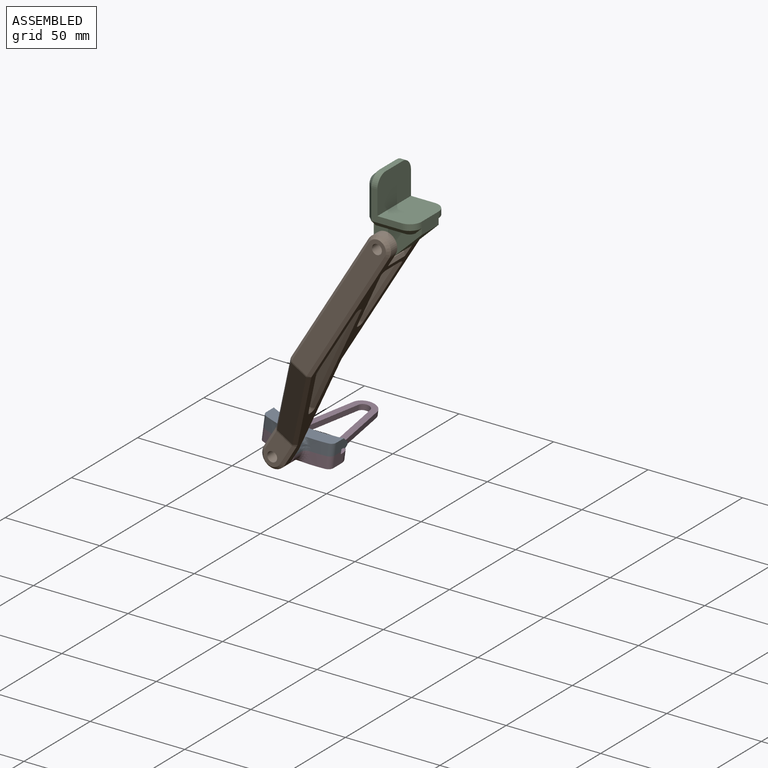
[diagram: assembled view]
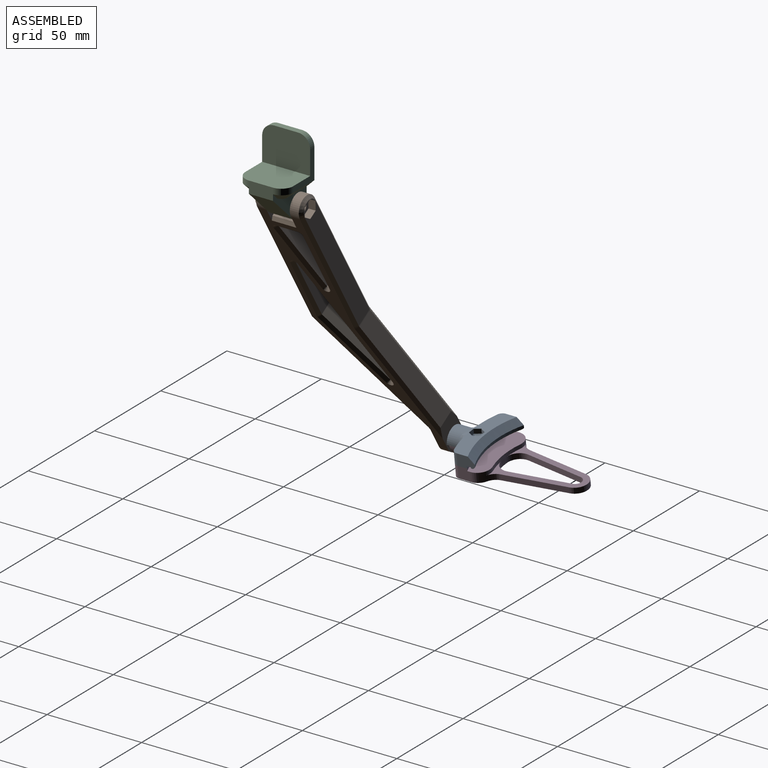
[diagram: assembled view, second angle]
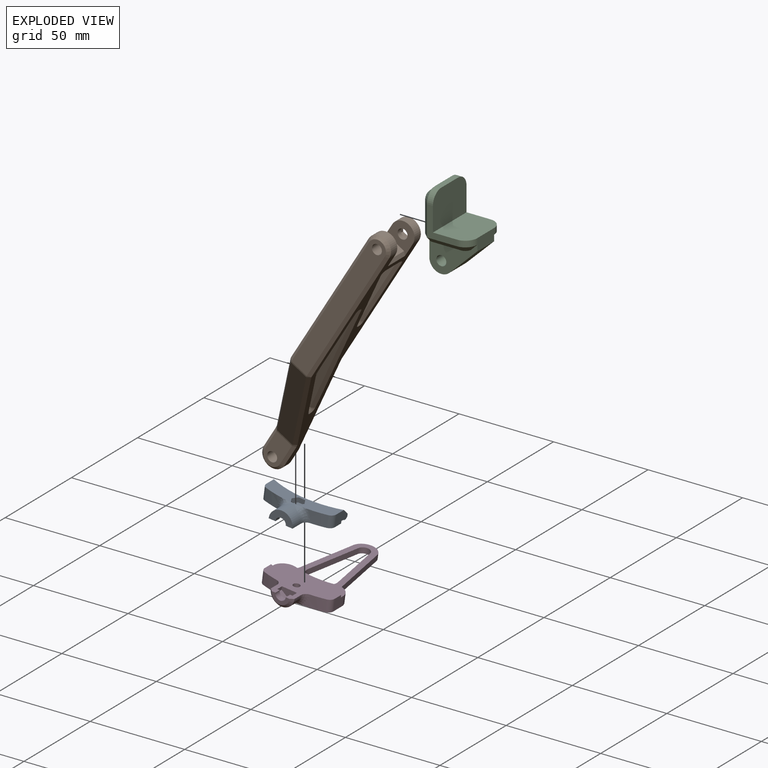
[diagram: exploded view]
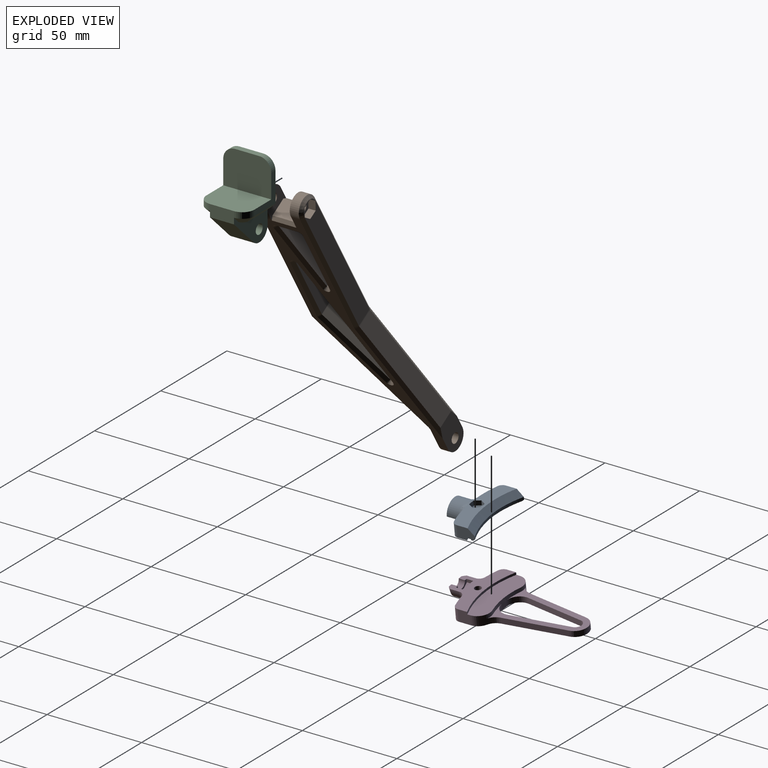
[diagram: exploded view, second angle]
ASSEMBLY  parts=4 mates=3
PART A: 43 faces, bbox 23.7x40.1x9.4 mm
  f0: plane 37.35x11.28mm, normal (0,0,1), area 252.1mm2, adj f3,f5,f6,f7,f14,f15,f16,f25
  f1: cylinder r=1.75mm len=3.5mm, axis (0,0,1), area 31.3mm2, adj f4,f32
  f2: plane 12.7x6.35mm, normal (1,0,0), area 51.5mm2, adj f4,f17,f24
  f3: plane 9.25x6.4mm, normal (0,-1,0), area 47.9mm2, adj f0,f4,f8,f9,f10,f11,f12,f13
  f4: plane 37.42x19.35mm, normal (0,0,-1), area 312.6mm2, adj f1,f2,f3,f5,f6,f7,f10,f15
  f5: cylinder r=54.6mm len=9.75mm, axis (0,0,-1), area 53.4mm2, adj f0,f4,f15,f40
  f6: cylinder r=54.6mm len=9.75mm, axis (0,0,-1), area 53.4mm2, adj f0,f4,f16,f41
  f7: plane 9.25x6.4mm, normal (0,1,0), area 47.9mm2, adj f0,f4,f8,f9,f10,f11,f12,f13
  f8: cylinder r=44mm len=37.35mm, axis (0,0,-1), area 55mm2, adj f3,f7,f13,f14
  f9: cylinder r=46mm len=37.35mm, axis (0,0,-1), area 19.2mm2, adj f3,f7,f11,f12
  f10: cylinder r=48mm len=37.35mm, axis (0,0,-1), area 48mm2, adj f3,f4,f7,f11
  f11: plane 37.35x5.96mm, normal (0,0,-1), area 76.8mm2, adj f3,f7,f9,f10
  f12: plane 37.35x5.06mm, normal (0,0,-1), area 38.5mm2, adj f3,f7,f9,f13
  f13: cone r=45mm half-angle=45deg, axis (0,0,-1), area 54.5mm2, adj f3,f7,f8,f12
  f14: cone r=44mm half-angle=45deg, axis (0,0,1), area 173mm2, adj f0,f3,f7,f8
  f15: cylinder r=3.17mm len=6.35mm, axis (0,0,-1), area 25.5mm2, adj f0,f3,f4,f5
  f16: cylinder r=3.17mm len=6.35mm, axis (0,0,-1), area 25.5mm2, adj f0,f4,f6,f7
  f17: cylinder r=6.35mm len=12.7mm, axis (-1,0,0), area 134.5mm2, adj f2,f4,f39,f40,f41,f42
  f18: plane 8x4.5mm, normal (-1,0,0), area 12.9mm2, adj f4,f19,f21,f22,f23,f24
  f19: plane 3.5x1.7mm, normal (0,-1,0), area 5.9mm2, adj f4,f18,f20,f23
  f20: plane 8x4.5mm, normal (1,0,0), area 24.8mm2, adj f4,f19,f21,f22,f23
  f21: plane 3.5x1.7mm, normal (0,1,0), area 5.9mm2, adj f4,f18,f20,f22
  f22: plane 4x3.5mm, normal (0,0.57,-0.82), area 17.1mm2, adj f18,f20,f21,f23
  f23: plane 4x3.5mm, normal (0,-0.57,-0.82), area 17.1mm2, adj f18,f19,f20,f22
  f24: cylinder r=2.75mm len=5.5mm, axis (1,0,0), area 28.1mm2, adj f2,f4,f18
  f25: plane 3.41x2.5mm, normal (-1,0,0), area 8.5mm2, adj f0,f26,f30,f38
  f26: plane 2.95x2.5mm, normal (-0.5,-0.87,0), area 8.5mm2, adj f0,f25,f27,f36
  f27: plane 2.95x2.5mm, normal (0.5,-0.87,0), area 8.5mm2, adj f0,f26,f28,f34
  f28: plane 3.41x2.5mm, normal (1,0,0), area 8.5mm2, adj f0,f27,f29,f33
  f29: plane 2.95x2.5mm, normal (0.5,0.87,0), area 8.5mm2, adj f0,f28,f30,f35
  f30: plane 2.95x2.5mm, normal (-0.5,0.87,0), area 8.5mm2, adj f0,f25,f29,f37
  f31: plane 5.66x4.9mm, normal (0,0,1), area 4.9mm2, adj f32,f33,f34,f35,f36,f37,f38
  f32: cone r=1.75mm half-angle=45deg, axis (0,0,1), area 8.9mm2, adj f1,f31
  f33: plane 3.41x0.5mm, normal (0.71,0,0.71), area 2.2mm2, adj f28,f31,f34,f35
  f34: plane 2.95x1.99mm, normal (0.35,-0.61,0.71), area 2.2mm2, adj f27,f31,f33,f36
  f35: plane 2.95x1.99mm, normal (0.35,0.61,0.71), area 2.2mm2, adj f29,f31,f33,f37
  f36: plane 2.95x1.99mm, normal (-0.35,-0.61,0.71), area 2.2mm2, adj f26,f31,f34,f38
  f37: plane 2.95x1.99mm, normal (-0.35,0.61,0.71), area 2.2mm2, adj f30,f31,f35,f38
  f38: plane 3.41x0.5mm, normal (-0.71,0,0.71), area 2.2mm2, adj f25,f31,f36,f37
  f39: bspline ~7.04x3.22mm, area 11.6mm2, adj f0,f17,f40
  f40: bspline ~9.36x5.53mm, area 25.1mm2, adj f4,f5,f17,f39
  f41: bspline ~9.36x5.53mm, area 25.1mm2, adj f4,f6,f17,f42
  f42: bspline ~7.04x3.22mm, area 11.6mm2, adj f0,f17,f41
PART B: 84 faces, bbox 44.8x171.5x12.7 mm
  f0: plane 83.57x9.53mm, normal (-1,0,0), area 728mm2, adj f67,f69,f70,f72,f77,f78,f79,f80
  f1: cylinder r=2.62mm len=5.25mm, axis (-1,0,0), area 42.1mm2, adj f6,f83
  f2: plane 65.38x37.99mm, normal (0.86,-0.5,0), area 720.3mm2, adj f54,f55,f60,f61
  f3: plane 84.26x9.53mm, normal (1,0,0), area 771.2mm2, adj f51,f53,f55,f56,f75
  f4: plane 14.29x12.7mm, normal (-1,0,0), area 124.9mm2, adj f5,f16,f17,f25,f73,f74,f75
  f5: plane 13.02x9.53mm, normal (0,1,0), area 124mm2, adj f4,f6,f73,f74
  f6: plane 14.29x12.7mm, normal (1,0,0), area 124.9mm2, adj f1,f5,f16,f17,f26,f73,f74
  f7: plane 65.91x18.99mm, normal (-0.96,0.28,0), area 653.3mm2, adj f8,f65,f68,f69
  f8: plane 19.95x12.7mm, normal (-1,0,0), area 205.3mm2, adj f7,f16,f17,f24,f65,f68,f76
  f9: plane 39.16x11.28mm, normal (-0.96,0.28,0), area 388.1mm2, adj f18,f20,f30,f37
  f10: plane 39.16x9.53mm, normal (1,0,0), area 373mm2, adj f18,f21,f27,f33
  f11: plane 38.17x22.18mm, normal (-0.86,0.5,0), area 420.5mm2, adj f22,f23,f42,f49
  f12: plane 76.97x22.18mm, normal (0.96,-0.28,0), area 763mm2, adj f19,f22,f39,f45
  f13: plane 11.28x9.53mm, normal (0,-1,0), area 107.4mm2, adj f20,f21,f31,f36
  f14: plane 38.81x9.53mm, normal (-1,0,0), area 369.6mm2, adj f19,f23,f43,f48
  f15: plane 17.04x9.53mm, normal (1,0,0), area 130.9mm2, adj f59,f60,f62,f64,f76
  f16: plane 158.75x43.18mm, normal (0,0,1), area 1355.3mm2, adj f4,f6,f8,f24,f25,f26,f33,f34
  f17: plane 158.75x43.18mm, normal (0,0,-1), area 1355.3mm2, adj f4,f6,f8,f24,f25,f26,f27,f28
  f18: cylinder r=0.64mm len=9.53mm, axis (0,0,1), area 17.3mm2, adj f9,f10,f28,f35
  f19: cylinder r=0.64mm len=9.53mm, axis (0,0,1), area 17.3mm2, adj f12,f14,f41,f46
  f20: cylinder r=0.64mm len=9.53mm, axis (0,0,-1), area 11.2mm2, adj f9,f13,f32,f38
  f21: cylinder r=0.64mm len=9.53mm, axis (0,0,-1), area 9.5mm2, adj f10,f13,f29,f34
  f22: cylinder r=0.64mm len=9.53mm, axis (0,0,1), area 17.5mm2, adj f11,f12,f40,f47
  f23: cylinder r=0.64mm len=9.53mm, axis (0,0,1), area 3.2mm2, adj f11,f14,f44,f50
  f24: cylinder r=6.35mm len=12.7mm, axis (-1,0,0), area 95mm2, adj f8,f16,f17,f62
  f25: cylinder r=6.35mm len=12.7mm, axis (1,0,0), area 95mm2, adj f4,f16,f17,f53
  f26: cylinder r=6.35mm len=12.7mm, axis (1,0,0), area 95mm2, adj f6,f16,f17,f70
  f27: plane 39.16x1.59mm, normal (0.71,0,-0.71), area 87.9mm2, adj f10,f17,f28,f29
  f28: cone r=2.22mm half-angle=45deg, axis (0,0,-1), area 9.2mm2, adj f17,f18,f27,f30
  f29: cone r=2.22mm half-angle=45deg, axis (0,0,-1), area 5mm2, adj f17,f21,f27,f31
  f30: plane 39.6x12.81mm, normal (-0.68,0.2,-0.71), area 91.5mm2, adj f9,f17,f28,f32
  f31: plane 11.28x1.59mm, normal (0,-0.71,-0.71), area 25.3mm2, adj f13,f17,f29,f32
  f32: cone r=2.22mm half-angle=45deg, axis (0,0,-1), area 5.9mm2, adj f17,f20,f30,f31
  f33: plane 39.16x1.59mm, normal (0.71,0,0.71), area 87.9mm2, adj f10,f16,f34,f35
  f34: cone r=2.22mm half-angle=45deg, axis (0,0,1), area 5mm2, adj f16,f21,f33,f36
  f35: cone r=2.22mm half-angle=45deg, axis (0,0,1), area 9.2mm2, adj f16,f18,f33,f37
  f36: plane 11.28x1.59mm, normal (0,-0.71,0.71), area 25.3mm2, adj f13,f16,f34,f38
  f37: plane 39.6x12.81mm, normal (-0.68,0.2,0.71), area 91.5mm2, adj f9,f16,f35,f38
  f38: cone r=2.22mm half-angle=45deg, axis (0,0,1), area 5.9mm2, adj f16,f20,f36,f37
  f39: plane 77.41x23.7mm, normal (0.68,-0.2,-0.71), area 179.8mm2, adj f12,f17,f40,f41
  f40: cone r=2.22mm half-angle=45deg, axis (0,0,-1), area 9.3mm2, adj f17,f22,f39,f42
  f41: cone r=2.22mm half-angle=45deg, axis (0,0,-1), area 9.2mm2, adj f17,f19,f39,f43
  f42: plane 38.97x23.55mm, normal (-0.61,0.36,-0.71), area 99.1mm2, adj f11,f17,f40,f44
  f43: plane 38.81x1.59mm, normal (-0.71,0,-0.71), area 87.1mm2, adj f14,f17,f41,f44
  f44: cone r=2.22mm half-angle=45deg, axis (0,0,-1), area 1.7mm2, adj f17,f23,f42,f43
  f45: plane 77.41x23.7mm, normal (0.68,-0.2,0.71), area 179.8mm2, adj f12,f16,f46,f47
  f46: cone r=2.22mm half-angle=45deg, axis (0,0,1), area 9.2mm2, adj f16,f19,f45,f48
  f47: cone r=2.22mm half-angle=45deg, axis (0,0,1), area 9.3mm2, adj f16,f22,f45,f49
  f48: plane 38.81x1.59mm, normal (-0.71,0,0.71), area 87.1mm2, adj f14,f16,f46,f50
  f49: plane 38.97x23.55mm, normal (-0.61,0.36,0.71), area 99.1mm2, adj f11,f16,f47,f50
  f50: cone r=2.22mm half-angle=45deg, axis (0,0,1), area 1.7mm2, adj f16,f23,f48,f49
  f51: plane 79.5x1.59mm, normal (0.71,0,0.71), area 178.5mm2, adj f3,f16,f52,f53
  f52: plane 1.59x1.59mm, normal (0.69,-0.19,0.69), area 0.9mm2, adj f51,f54,f55
  f53: cone r=4.76mm half-angle=45deg, axis (-1,0,0), area 39.2mm2, adj f3,f25,f51,f56
  f54: plane 66.18x39.36mm, normal (0.61,-0.36,0.71), area 169.8mm2, adj f2,f16,f52,f57
  f55: plane 9.53x0.8mm, normal (0.97,-0.26,0), area 7.9mm2, adj f2,f3,f52,f58
  f56: plane 79.5x1.59mm, normal (0.71,0,-0.71), area 178.5mm2, adj f3,f17,f53,f58
  f57: plane 1.8x1.6mm, normal (0.69,-0.19,0.69), area 2.7mm2, adj f16,f54,f59,f60
  f58: plane 1.59x1.59mm, normal (0.69,-0.19,-0.69), area 0.9mm2, adj f55,f56,f61
  f59: plane 12.27x1.59mm, normal (0.71,0,0.71), area 27.6mm2, adj f15,f16,f57,f62
  f60: plane 9.53x0.8mm, normal (0.97,-0.26,0), area 7.9mm2, adj f2,f15,f57,f63
  f61: plane 66.18x39.36mm, normal (0.61,-0.36,-0.71), area 169.8mm2, adj f2,f17,f58,f63
  f62: cone r=4.76mm half-angle=45deg, axis (-1,0,0), area 39.2mm2, adj f15,f24,f59,f64
  f63: plane 1.8x1.6mm, normal (0.69,-0.19,-0.69), area 2.7mm2, adj f17,f60,f61,f64
  f64: plane 12.27x1.59mm, normal (0.71,0,-0.71), area 27.6mm2, adj f15,f17,f62,f63
  f65: plane 71.64x20.51mm, normal (-0.68,0.2,-0.71), area 160.2mm2, adj f7,f8,f17,f66
  f66: plane 1.65x1.59mm, normal (-0.7,0.1,-0.7), area 1.5mm2, adj f17,f65,f67,f69
  f67: plane 78.81x1.59mm, normal (-0.71,0,-0.71), area 176.9mm2, adj f0,f17,f66,f70
  f68: plane 71.64x20.51mm, normal (-0.68,0.2,0.71), area 160.2mm2, adj f7,f8,f16,f71
  f69: plane 9.53x0.44mm, normal (-0.99,0.14,0), area 4.2mm2, adj f0,f7,f66,f71
  f70: cone r=4.76mm half-angle=45deg, axis (1,0,0), area 39.2mm2, adj f0,f26,f67,f72
  f71: plane 1.65x1.59mm, normal (-0.7,0.1,0.7), area 1.5mm2, adj f16,f68,f69,f72
  f72: plane 78.81x1.59mm, normal (-0.71,0,0.71), area 176.9mm2, adj f0,f16,f70,f71
  f73: plane 13.02x1.59mm, normal (0,0.71,-0.71), area 29.2mm2, adj f4,f5,f6,f17
  f74: plane 13.02x1.59mm, normal (0,0.71,0.71), area 29.2mm2, adj f4,f5,f6,f16
  f75: cylinder r=2.62mm len=6.35mm, axis (-1,0,0), area 104.7mm2, adj f3,f4
  f76: cylinder r=2.62mm len=6.35mm, axis (1,0,0), area 104.7mm2, adj f8,f15
  f77: plane 4.73x3.8mm, normal (0,-1,0), area 18mm2, adj f0,f78,f82,f83
  f78: plane 4.1x3.8mm, normal (0,-0.5,0.87), area 18mm2, adj f0,f77,f79,f83
  f79: plane 4.1x3.8mm, normal (0,0.5,0.87), area 18mm2, adj f0,f78,f80,f83
  f80: plane 4.73x3.8mm, normal (0,1,0), area 18mm2, adj f0,f79,f81,f83
  f81: plane 4.1x3.8mm, normal (0,0.5,-0.87), area 18mm2, adj f0,f80,f82,f83
  f82: plane 4.1x3.8mm, normal (0,-0.5,-0.87), area 18mm2, adj f0,f77,f81,f83
  f83: plane 9.47x8.2mm, normal (-1,0,0), area 36.6mm2, adj f1,f77,f78,f79,f80,f81,f82
PART C: 31 faces, bbox 25.4x41.3x25.4 mm
  f0: plane 19.05x3.18mm, normal (0,-1,0), area 58.3mm2, adj f12,f22,f24,f25
  f1: plane 31.75x19.05mm, normal (-1,0,0), area 519.9mm2, adj f9,f11,f12,f19,f21,f23,f24,f26
  f2: plane 19.05x3.18mm, normal (0,-1,0), area 58.3mm2, adj f11,f17,f18,f19
  f3: plane 12.7x6.35mm, normal (1,0,0), area 80.6mm2, adj f4,f10,f11,f12,f13,f15
  f4: plane 25.4x19.05mm, normal (0,1,0), area 466.6mm2, adj f3,f5,f7,f8,f13,f15
  f5: plane 25.4x19.05mm, normal (1,0,0), area 466.6mm2, adj f4,f6,f7,f8,f14,f16
  f6: plane 12.7x3.18mm, normal (0,1,0), area 40.3mm2, adj f5,f14,f16,f26
  f7: plane 15.88x15.88mm, normal (0,0,1), area 90.7mm2, adj f4,f5,f15,f16,f18,f21
  f8: plane 15.88x15.88mm, normal (0,0,-1), area 90.7mm2, adj f4,f5,f13,f14,f25,f29
  f9: cylinder r=6.35mm len=12.7mm, axis (0,0,-1), area 188.5mm2, adj f1,f10,f11,f12
  f10: plane 14.65x14.1mm, normal (0.69,-0.72,0), area 258.2mm2, adj f3,f9,f11,f12
  f11: plane 25.4x19.05mm, normal (0,0,1), area 251.3mm2, adj f1,f2,f3,f9,f10,f17,f19,f30
  f12: plane 25.4x19.05mm, normal (0,0,-1), area 251.3mm2, adj f0,f1,f3,f9,f10,f22,f24,f30
  f13: cylinder r=6.35mm len=6.35mm, axis (0,1,0), area 31.7mm2, adj f3,f4,f8,f22
  f14: cylinder r=6.35mm len=6.35mm, axis (-1,0,0), area 31.7mm2, adj f5,f6,f8,f28
  f15: cylinder r=6.35mm len=6.35mm, axis (0,-1,0), area 31.7mm2, adj f3,f4,f7,f17
  f16: cylinder r=6.35mm len=6.35mm, axis (1,0,0), area 31.7mm2, adj f5,f6,f7,f23
  f17: cone r=3.17mm half-angle=45deg, axis (0,1,0), area 33.6mm2, adj f2,f11,f15,f18
  f18: plane 15.88x3.18mm, normal (0,-0.71,0.71), area 71.3mm2, adj f2,f7,f17,f20
  f19: plane 3.18x3.18mm, normal (-0.71,-0.71,0), area 14.3mm2, adj f1,f2,f11,f20
  f20: plane 3.18x3.18mm, normal (-0.58,-0.58,0.58), area 8.7mm2, adj f18,f19,f21
  f21: plane 15.88x3.18mm, normal (-0.71,0,0.71), area 71.3mm2, adj f1,f7,f20,f23
  f22: cone r=3.17mm half-angle=45deg, axis (0,1,0), area 33.6mm2, adj f0,f12,f13,f25
  f23: cone r=3.17mm half-angle=45deg, axis (1,0,0), area 33.6mm2, adj f1,f16,f21,f26
  f24: plane 3.18x3.18mm, normal (-0.71,-0.71,0), area 14.3mm2, adj f0,f1,f12,f27
  f25: plane 15.88x3.18mm, normal (0,-0.71,-0.71), area 71.3mm2, adj f0,f8,f22,f27
  f26: plane 12.7x3.18mm, normal (-0.71,0.71,0), area 57mm2, adj f1,f6,f23,f28
  f27: plane 3.18x3.18mm, normal (-0.58,-0.58,-0.58), area 8.7mm2, adj f24,f25,f29
  f28: cone r=3.17mm half-angle=45deg, axis (1,0,0), area 33.6mm2, adj f1,f14,f26,f29
  f29: plane 15.88x3.18mm, normal (-0.71,0,-0.71), area 71.3mm2, adj f1,f8,f27,f28
  f30: cylinder r=2.62mm len=12.7mm, axis (0,0,1), area 209.5mm2, adj f11,f12
PART D: 42 faces, bbox 69.9x37.4x9.4 mm
  f0: cylinder r=38mm len=21.12mm, axis (0,0,-1), area 57mm2, adj f1,f9,f18,f19,f36,f37,f38
  f1: cylinder r=6.35mm len=8.11mm, axis (0,0,-1), area 46.4mm2, adj f0,f3,f9,f18,f36,f40
  f2: cylinder r=1.75mm len=4.35mm, axis (0,0,1), area 47.8mm2, adj f4,f24
  f3: plane 6.43x6.35mm, normal (0,-1,0), area 38.8mm2, adj f1,f4,f9,f17,f18,f21
  f4: plane 37.42x19.35mm, normal (0,0,-1), area 310.1mm2, adj f2,f3,f5,f6,f7,f8,f10,f11
  f5: plane 9.53x4.76mm, normal (1,0,0), area 23.7mm2, adj f4,f16,f41
  f6: cylinder r=54.6mm len=9.75mm, axis (0,0,-1), area 53.4mm2, adj f4,f9,f21,f27
  f7: cylinder r=54.6mm len=9.75mm, axis (0,0,-1), area 53.4mm2, adj f4,f9,f22,f28
  f8: plane 6.43x6.35mm, normal (0,1,0), area 38.8mm2, adj f4,f9,f17,f18,f19,f22
  f9: plane 60.95x37.35mm, normal (0,0,1), area 877.1mm2, adj f0,f1,f3,f6,f7,f8,f19,f21
  f10: plane 8x4.5mm, normal (-1,0,0), area 12.9mm2, adj f4,f11,f13,f14,f15,f16
  f11: plane 3.5x1.7mm, normal (0,-1,0), area 5.9mm2, adj f4,f10,f12,f15
  f12: plane 8x4.5mm, normal (1,0,0), area 24.8mm2, adj f4,f11,f13,f14,f15
  f13: plane 3.5x1.7mm, normal (0,1,0), area 5.9mm2, adj f4,f10,f12,f14
  f14: plane 4x3.5mm, normal (0,0.57,-0.82), area 17.1mm2, adj f10,f12,f13,f15
  f15: plane 4x3.5mm, normal (0,-0.57,-0.82), area 17.1mm2, adj f10,f11,f12,f14
  f16: cylinder r=2.75mm len=5.5mm, axis (1,0,0), area 28.1mm2, adj f4,f5,f10
  f17: cylinder r=48mm len=37.35mm, axis (0,0,-1), area 48mm2, adj f3,f4,f8,f18
  f18: plane 37.35x11.75mm, normal (0,0,-1), area 348.4mm2, adj f0,f1,f3,f8,f17,f19
  f19: cylinder r=6.35mm len=8.11mm, axis (0,0,-1), area 46.4mm2, adj f0,f8,f9,f18,f36,f39
  f20: cylinder r=6.35mm len=12.7mm, axis (-1,0,0), area 102.9mm2, adj f4,f26,f27,f28,f29,f41
  f21: cylinder r=3.17mm len=6.35mm, axis (0,0,-1), area 25.5mm2, adj f3,f4,f6,f9
  f22: cylinder r=3.17mm len=6.35mm, axis (0,0,-1), area 25.5mm2, adj f4,f7,f8,f9
  f23: cylinder r=3mm len=6mm, axis (0,0,1), area 28.3mm2, adj f9,f25
  f24: plane 5x5mm, normal (0,0,1), area 10mm2, adj f2,f25
  f25: cone r=2.5mm half-angle=45deg, axis (0,0,1), area 12.2mm2, adj f23,f24
  f26: bspline ~7.04x3.22mm, area 11.6mm2, adj f9,f20,f27
  f27: bspline ~9.36x5.53mm, area 25.1mm2, adj f4,f6,f20,f26
  f28: bspline ~9.36x5.53mm, area 25.1mm2, adj f4,f7,f20,f29
  f29: bspline ~7.04x3.22mm, area 11.6mm2, adj f9,f20,f28
  f30: plane 31.12x4.81mm, normal (0.15,0.99,0), area 94.5mm2, adj f9,f31,f36,f37
  f31: cylinder r=3.17mm len=6.28mm, axis (0,0,1), area 27mm2, adj f9,f30,f32,f36
  f32: plane 31.12x4.81mm, normal (0.15,-0.99,0), area 94.5mm2, adj f9,f31,f36,f38
  f33: plane 33.01x5.1mm, normal (-0.15,0.99,0), area 100.2mm2, adj f9,f34,f36,f39
  f34: cylinder r=6.35mm len=12.55mm, axis (0,0,1), area 54mm2, adj f9,f33,f35,f36
  f35: plane 33.01x5.1mm, normal (-0.15,-0.99,0), area 100.2mm2, adj f9,f34,f36,f40
  f36: plane 44.3x29.97mm, normal (0,0,-1), area 306.5mm2, adj f0,f1,f19,f30,f31,f32,f33,f34
  f37: cylinder r=6.35mm len=7.31mm, axis (0,0,-1), area 31.8mm2, adj f0,f9,f30,f36
  f38: cylinder r=6.35mm len=7.31mm, axis (0,0,-1), area 31.8mm2, adj f0,f9,f32,f36
  f39: cylinder r=6.35mm len=4.8mm, axis (0,0,-1), area 18.8mm2, adj f9,f19,f33,f36
  f40: cylinder r=6.35mm len=4.8mm, axis (0,0,-1), area 18.8mm2, adj f1,f9,f35,f36
  f41: cone r=4.76mm half-angle=45deg, axis (-1,0,0), area 39.2mm2, adj f4,f5,f20
PLACE A rot(axis=(-0.06,0.06,-1),90.2deg) t=(-91.52,95.25,-151.63)mm
PLACE B rot(axis=(0.44,-0.44,-0.78),103.9deg) t=(-89.38,31.75,-160.35)mm
PLACE C rot(axis=(1,0,0),90deg) t=(-15.57,12.7,-6.35)mm
PLACE D rot(axis=(0.71,-0.71,-0.05),174.8deg) t=(-91.52,95.25,-151.63)mm
MATE fastened D.f2 <-> A.f1  axis (0.13,0,0.99) through (-91.52,43.82,-151.63)mm
MATE revolute B.f1 <-> C.f9  axis (0,1,0) through (-9.22,6.35,-15.88)mm
MATE revolute D.f16 <-> B.f24  axis (0,-1,0) through (-91.52,31.75,-151.63)mm
